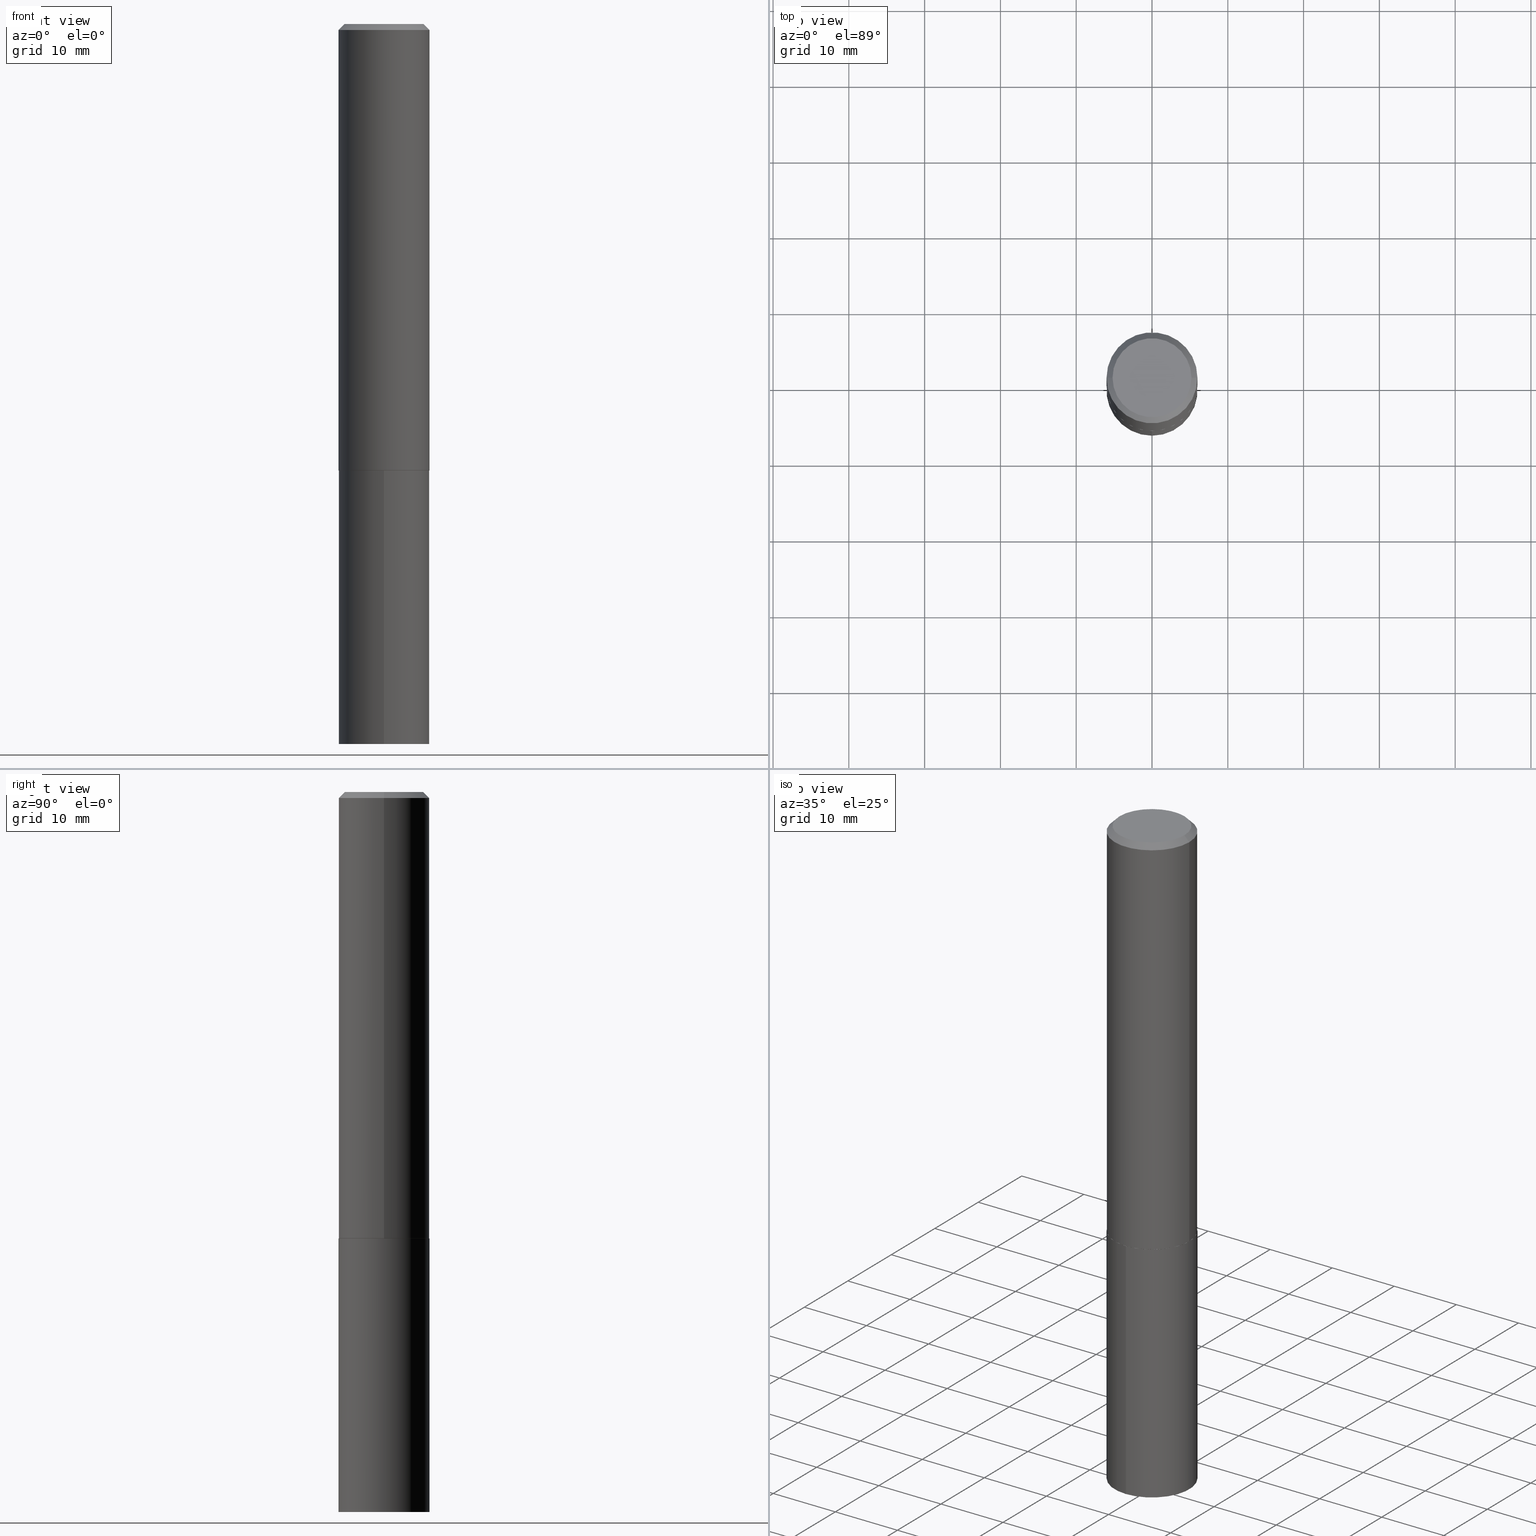
[diagram: canonical four-view strip — front | top / right | iso, engineering-drawing reading convention]
A machine part, canonical four-view strip (front | top / right | iso — engineering-drawing reading convention). The complete STEP part file that produces these views, byte-faithful:
ISO-10303-21;
HEADER;
FILE_DESCRIPTION (( 'STEP AP203' ),
    '1' );
FILE_NAME ('67797.STEP',
    '2024-04-23T12:53:49',
    ( '' ),
    ( '' ),
    'SwSTEP 2.0',
    'SolidWorks 2023',
    '' );
FILE_SCHEMA (( 'CONFIG_CONTROL_DESIGN' ));
ENDSEC;

DATA;
#1 = CARTESIAN_POINT ( 'NONE',  ( -0.2361999999999999933, 1.540266992630647030E-15, -0.03125000000000020817 ) ) ;
#2 = PERSON_AND_ORGANIZATION ( #175, #254 ) ;
#3 = ORIENTED_EDGE ( 'NONE', *, *, #55, .F. ) ;
#4 = CIRCLE ( 'NONE', #275, 0.2362000000000003264 ) ;
#5 = CARTESIAN_POINT ( 'NONE',  ( -1.649375784469439136E-15, -0.2362000000000080979, -2.319199999999999484 ) ) ;
#6 = DIRECTION ( 'NONE',  ( -1.000000000000000000, 6.982962677686266711E-15, 0.000000000000000000 ) ) ;
#7 = FACE_OUTER_BOUND ( 'NONE', #52, .T. ) ;
#8 = AXIS2_PLACEMENT_3D ( 'NONE', #300, #183, #201 ) ;
#9 = AXIS2_PLACEMENT_3D ( 'NONE', #102, #128, #181 ) ;
#10 = CARTESIAN_POINT ( 'NONE',  ( 5.671531255304567884E-29, -8.097443521045022431E-15, -2.319199999999999484 ) ) ;
#11 = PRODUCT_DEFINITION ( 'UNKNOWN', '', #91, #211 ) ;
#12 = CARTESIAN_POINT ( 'NONE',  ( -1.649375784469439136E-15, -0.2362000000000080979, -2.319199999999999484 ) ) ;
#13 = CARTESIAN_POINT ( 'NONE',  ( 7.642090019328602662E-31, -1.091087918388490267E-16, -0.03125000000000020817 ) ) ;
#14 = VERTEX_POINT ( 'NONE', #157 ) ;
#15 = ORIENTED_EDGE ( 'NONE', *, *, #283, .T. ) ;
#16 = CIRCLE ( 'NONE', #258, 0.2361999999999999933 ) ;
#17 = CC_DESIGN_PERSON_AND_ORGANIZATION_ASSIGNMENT ( #110, #252, ( #91 ) ) ;
#18 = CARTESIAN_POINT ( 'NONE',  ( -5.892338936576605744E-47, 8.412698369802303245E-33, 2.409492577322419881E-18 ) ) ;
#19 =( NAMED_UNIT ( * ) PLANE_ANGLE_UNIT ( ) SI_UNIT ( $, .RADIAN. ) );
#20 = VERTEX_POINT ( 'NONE', #24 ) ;
#21 = AXIS2_PLACEMENT_3D ( 'NONE', #22, #136, #44 ) ;
#22 = CARTESIAN_POINT ( 'NONE',  ( 5.670308520901476204E-29, -8.095697780375601716E-15, -2.318700000000000205 ) ) ;
#23 = CALENDAR_DATE ( 2024, 23, 4 ) ;
#24 = CARTESIAN_POINT ( 'NONE',  ( 1.678301941865430350E-15, 0.2361999999999869482, -3.740200000000000635 ) ) ;
#25 = SECURITY_CLASSIFICATION_LEVEL ( 'unclassified' ) ;
#26 = LINE ( 'NONE', #341, #164 ) ;
#27 = PERSON_AND_ORGANIZATION ( #175, #254 ) ;
#28 = DIRECTION ( 'NONE',  ( 1.000000000000000000, -6.982962677686266711E-15, 4.876118559169178830E-29 ) ) ;
#29 = AXIS2_PLACEMENT_3D ( 'NONE', #312, #208, #47 ) ;
#30 = LOCAL_TIME ( 8, 53, 49.00000000000000000, #80 ) ;
#31 = CARTESIAN_POINT ( 'NONE',  ( 1.518799234684188645E-28, -4.407138363064351052E-15, -3.740199999999999747 ) ) ;
#32 = CARTESIAN_POINT ( 'NONE',  ( 5.671531255304570126E-29, -8.097443521045024009E-15, -2.319200000000000372 ) ) ;
#33 = CC_DESIGN_PERSON_AND_ORGANIZATION_ASSIGNMENT ( #2, #308, ( #91 ) ) ;
#34 = DIRECTION ( 'NONE',  ( -6.982962677686265922E-15, -1.000000000000000000, 3.492965275758110023E-15 ) ) ;
#35 = CC_DESIGN_APPROVAL ( #206, ( #58 ) ) ;
#36 = DIRECTION ( 'NONE',  ( -2.445468806185136877E-29, 3.491481338843145188E-15, 1.000000000000000000 ) ) ;
#37 = EDGE_LOOP ( 'NONE', ( #40, #15, #280, #336 ) ) ;
#38 = ADVANCED_FACE ( 'NONE', ( #362 ), #51, .T. ) ;
#39 = EDGE_LOOP ( 'NONE', ( #173, #125, #242, #137 ) ) ;
#40 = ORIENTED_EDGE ( 'NONE', *, *, #240, .F. ) ;
#41 = LENGTH_MEASURE_WITH_UNIT ( LENGTH_MEASURE( 0.02539999999999999897 ), #130 );
#42 = PRODUCT ( '67797', '67797', '', ( #328 ) ) ;
#43 = DIRECTION ( 'NONE',  ( 0.7071067811865452413, -7.319954787623248157E-15, -0.7071067811865497932 ) ) ;
#44 = DIRECTION ( 'NONE',  ( 1.000000000000000000, -6.982962677686270655E-15, 0.000000000000000000 ) ) ;
#45 = CARTESIAN_POINT ( 'NONE',  ( -0.2362000000000003264, -6.417395838510242955E-15, -2.318700000000000205 ) ) ;
#46 = ORIENTED_EDGE ( 'NONE', *, *, #349, .F. ) ;
#47 = DIRECTION ( 'NONE',  ( -6.982962677686265922E-15, -1.000000000000000000, 3.469747663417777397E-15 ) ) ;
#48 = DIRECTION ( 'NONE',  ( -2.445468806185136597E-29, 3.491481338843145583E-15, 1.000000000000000000 ) ) ;
#49 = CALENDAR_DATE ( 2024, 23, 4 ) ;
#50 = CIRCLE ( 'NONE', #323, 0.2357000000000002982 ) ;
#51 = CYLINDRICAL_SURFACE ( 'NONE', #329, 0.2361999999999999933 ) ;
#52 = EDGE_LOOP ( 'NONE', ( #46, #147 ) ) ;
#53 = UNCERTAINTY_MEASURE_WITH_UNIT (LENGTH_MEASURE( 1.000000000000000082E-05 ), #155, 'distance_accuracy_value', 'NONE');
#54 = CARTESIAN_POINT ( 'NONE',  ( -0.2357000000000002982, -6.420045065684352579E-15, -2.319199999999999484 ) ) ;
#55 = EDGE_CURVE ( 'NONE', #265, #245, #50, .T. ) ;
#56 = CARTESIAN_POINT ( 'NONE',  ( 0.2362000000000001598, -1.649375784469497314E-15, 1.151752954443000929E-29 ) ) ;
#57 = CIRCLE ( 'NONE', #319, 0.2357000000000002982 ) ;
#58 = SECURITY_CLASSIFICATION ( '', '', #25 ) ;
#59 = CARTESIAN_POINT ( 'NONE',  ( 5.671531255304570126E-29, -8.097443521045024009E-15, -2.319200000000000372 ) ) ;
#60 = DIRECTION ( 'NONE',  ( 1.000000000000000000, -6.982962677686265922E-15, 0.000000000000000000 ) ) ;
#61 = CARTESIAN_POINT ( 'NONE',  ( 5.670308520901476204E-29, -8.095697780375601716E-15, -2.318700000000000205 ) ) ;
#62 = AXIS2_PLACEMENT_3D ( 'NONE', #31, #191, #34 ) ;
#63 = CALENDAR_DATE ( 2024, 23, 4 ) ;
#64 = AXIS2_PLACEMENT_3D ( 'NONE', #196, #87, #28 ) ;
#65 = VECTOR ( 'NONE', #43, 39.37007874015748143 ) ;
#66 = ORIENTED_EDGE ( 'NONE', *, *, #234, .T. ) ;
#67 = EDGE_CURVE ( 'NONE', #20, #179, #161, .T. ) ;
#68 = CARTESIAN_POINT ( 'NONE',  ( 0.2361999999999999933, -1.729558418912484771E-15, -0.03125000000000020817 ) ) ;
#69 = ADVANCED_FACE ( 'NONE', ( #214 ), #90, .T. ) ;
#70 = EDGE_LOOP ( 'NONE', ( #131, #251, #268, #235 ) ) ;
#71 = EDGE_CURVE ( 'NONE', #149, #325, #359, .T. ) ;
#72 = EDGE_CURVE ( 'NONE', #353, #325, #79, .T. ) ;
#73 = COORDINATED_UNIVERSAL_TIME_OFFSET ( 5, 0, .BEHIND. ) ;
#74 = EDGE_LOOP ( 'NONE', ( #296, #123 ) ) ;
#75 = DIRECTION ( 'NONE',  ( -2.444432578575813081E-29, 3.492965275758109629E-15, 1.000000000000000000 ) ) ;
#76 = CIRCLE ( 'NONE', #267, 0.2361999999999999933 ) ;
#77 = LINE ( 'NONE', #12, #94 ) ;
#78 = CARTESIAN_POINT ( 'NONE',  ( -0.2362000000000003264, -6.417395838510242955E-15, -2.318700000000000205 ) ) ;
#79 = LINE ( 'NONE', #299, #306 ) ;
#80 = COORDINATED_UNIVERSAL_TIME_OFFSET ( 5, 0, .BEHIND. ) ;
#81 = EDGE_CURVE ( 'NONE', #14, #353, #4, .T. ) ;
#82 = CARTESIAN_POINT ( 'NONE',  ( 5.671531255304567884E-29, -8.097443521045022431E-15, -2.319199999999999484 ) ) ;
#83 = AXIS2_PLACEMENT_3D ( 'NONE', #61, #140, #286 ) ;
#84 = PLANE ( 'NONE',  #126 ) ;
#85 = DATE_AND_TIME ( #49, #213 ) ;
#86 = DIRECTION ( 'NONE',  ( 0.7071067811868372299, -2.468850131085291414E-15, 0.7071067811862578045 ) ) ;
#87 = DIRECTION ( 'NONE',  ( -2.445468806185136597E-29, 3.491481338843145583E-15, 1.000000000000000000 ) ) ;
#88 = CARTESIAN_POINT ( 'NONE',  ( 0.000000000000000000, 0.000000000000000000, 0.000000000000000000 ) ) ;
#89 = DIMENSIONAL_EXPONENTS ( 1.000000000000000000, 0.000000000000000000, 0.000000000000000000, 0.000000000000000000, 0.000000000000000000, 0.000000000000000000, 0.000000000000000000 ) ;
#90 = CONICAL_SURFACE ( 'NONE', #21, 0.2362000000000003264, 0.7853981633978580623 ) ;
#91 = PRODUCT_DEFINITION_FORMATION_WITH_SPECIFIED_SOURCE ( 'ANY', '', #42, .NOT_KNOWN. ) ;
#92 = LINE ( 'NONE', #56, #351 ) ;
#93 = DIRECTION ( 'NONE',  ( -2.445468806185136597E-29, 3.491481338843145583E-15, 1.000000000000000000 ) ) ;
#94 = VECTOR ( 'NONE', #139, 39.37007874015748143 ) ;
#95 = ADVANCED_FACE ( 'NONE', ( #134 ), #84, .F. ) ;
#96 = EDGE_LOOP ( 'NONE', ( #159, #327, #266, #358 ) ) ;
#97 = MANIFOLD_SOLID_BREP ( 'Body-Move/Copy2[1]', #169 ) ;
#98 = ORIENTED_EDGE ( 'NONE', *, *, #282, .F. ) ;
#99 = ORIENTED_EDGE ( 'NONE', *, *, #282, .T. ) ;
#100 = AXIS2_PLACEMENT_3D ( 'NONE', #32, #141, #285 ) ;
#101 = PERSON_AND_ORGANIZATION ( #175, #254 ) ;
#102 = CARTESIAN_POINT ( 'NONE',  ( 0.000000000000000000, 0.000000000000000000, 0.000000000000000000 ) ) ;
#103 = DIRECTION ( 'NONE',  ( 2.438088387897960049E-29, -3.491481338843145188E-15, -1.000000000000000000 ) ) ;
#104 = CARTESIAN_POINT ( 'NONE',  ( -0.2361999999999999933, -2.424101344241866648E-15, -0.03125000000000020817 ) ) ;
#105 = EDGE_CURVE ( 'NONE', #245, #14, #26, .T. ) ;
#106 = DIRECTION ( 'NONE',  ( 1.000000000000000000, -6.982962677686265922E-15, 0.000000000000000000 ) ) ;
#107 = DIRECTION ( 'NONE',  ( 6.982962677686265922E-15, 1.000000000000000000, -3.492965275758110023E-15 ) ) ;
#108 = COORDINATED_UNIVERSAL_TIME_OFFSET ( 5, 0, .BEHIND. ) ;
#109 = CARTESIAN_POINT ( 'NONE',  ( 5.670308520901476204E-29, -8.095697780375601716E-15, -2.318700000000000205 ) ) ;
#110 = PERSON_AND_ORGANIZATION ( #175, #254 ) ;
#111 = CIRCLE ( 'NONE', #356, 0.2361999999999999933 ) ;
#112 = CARTESIAN_POINT ( 'NONE',  ( 5.671531255304570126E-29, -8.097443521045024009E-15, -2.319200000000000372 ) ) ;
#113 = ADVANCED_FACE ( 'NONE', ( #270 ), #216, .F. ) ;
#114 = DIRECTION ( 'NONE',  ( -2.445468806185136597E-29, 3.491481338843145583E-15, 1.000000000000000000 ) ) ;
#115 = CYLINDRICAL_SURFACE ( 'NONE', #226, 0.2362000000000001598 ) ;
#116 = DIRECTION ( 'NONE',  ( -2.445468806185136597E-29, 3.491481338843145583E-15, 1.000000000000000000 ) ) ;
#117 = CONICAL_SURFACE ( 'NONE', #220, 0.2361999999999999933, 0.7853981633974450594 ) ;
#118 = APPROVAL_PERSON_ORGANIZATION ( #249, #206, #363 ) ;
#119 = FACE_OUTER_BOUND ( 'NONE', #238, .T. ) ;
#120 = DIRECTION ( 'NONE',  ( -2.444432578575813081E-29, 3.492965275758109629E-15, 1.000000000000000000 ) ) ;
#121 = DIRECTION ( 'NONE',  ( -1.000000000000000000, 6.982962677686266711E-15, 0.000000000000000000 ) ) ;
#122 = EDGE_CURVE ( 'NONE', #205, #177, #77, .T. ) ;
#123 = ORIENTED_EDGE ( 'NONE', *, *, #240, .T. ) ;
#124 = CC_DESIGN_SECURITY_CLASSIFICATION ( #58, ( #91 ) ) ;
#125 = ORIENTED_EDGE ( 'NONE', *, *, #72, .T. ) ;
#126 = AXIS2_PLACEMENT_3D ( 'NONE', #248, #365, #107 ) ;
#127 = CC_DESIGN_APPROVAL ( #193, ( #91 ) ) ;
#128 = DIRECTION ( 'NONE',  ( 0.000000000000000000, 0.000000000000000000, 1.000000000000000000 ) ) ;
#129 = ORIENTED_EDGE ( 'NONE', *, *, #81, .F. ) ;
#130 =( LENGTH_UNIT ( ) NAMED_UNIT ( * ) SI_UNIT ( $, .METRE. ) );
#131 = ORIENTED_EDGE ( 'NONE', *, *, #72, .F. ) ;
#132 = ORIENTED_EDGE ( 'NONE', *, *, #142, .T. ) ;
#133 = DIRECTION ( 'NONE',  ( -0.7071067811868372299, 7.493145998871401767E-15, 0.7071067811862578045 ) ) ;
#134 = FACE_OUTER_BOUND ( 'NONE', #302, .T. ) ;
#135 = CALENDAR_DATE ( 2024, 23, 4 ) ;
#136 = DIRECTION ( 'NONE',  ( -2.445468806185136597E-29, 3.491481338843145583E-15, 1.000000000000000000 ) ) ;
#137 = ORIENTED_EDGE ( 'NONE', *, *, #166, .F. ) ;
#138 = APPROVAL_STATUS ( 'not_yet_approved' ) ;
#139 = DIRECTION ( 'NONE',  ( -2.444432578575813362E-29, 3.492965275758110023E-15, 1.000000000000000000 ) ) ;
#140 = DIRECTION ( 'NONE',  ( -2.445468806185136597E-29, 3.491481338843145583E-15, 1.000000000000000000 ) ) ;
#141 = DIRECTION ( 'NONE',  ( -2.444432578575813081E-29, 3.492965275758109629E-15, 1.000000000000000000 ) ) ;
#142 = EDGE_CURVE ( 'NONE', #179, #177, #16, .T. ) ;
#143 = FACE_OUTER_BOUND ( 'NONE', #357, .T. ) ;
#144 = CIRCLE ( 'NONE', #83, 0.2362000000000003264 ) ;
#145 = DIRECTION ( 'NONE',  ( 1.000000000000000000, -6.982962677686266711E-15, 4.876176775795936353E-29 ) ) ;
#146 = EDGE_CURVE ( 'NONE', #353, #14, #144, .T. ) ;
#147 = ORIENTED_EDGE ( 'NONE', *, *, #224, .F. ) ;
#148 = ADVANCED_BREP_SHAPE_REPRESENTATION ( '67797', ( #97, #209, #9 ), #339 ) ;
#149 = VERTEX_POINT ( 'NONE', #315 ) ;
#150 = AXIS2_PLACEMENT_3D ( 'NONE', #231, #93, #167 ) ;
#151 = ORIENTED_EDGE ( 'NONE', *, *, #224, .T. ) ;
#152 = DIRECTION ( 'NONE',  ( 2.445468806185136597E-29, -3.491481338843145583E-15, -1.000000000000000000 ) ) ;
#153 = APPROVAL ( #360, 'UNSPECIFIED' ) ;
#154 = DIRECTION ( 'NONE',  ( -2.444432578575813362E-29, 3.492965275758110023E-15, 1.000000000000000000 ) ) ;
#155 =( CONVERSION_BASED_UNIT ( 'INCH', #41 ) LENGTH_UNIT ( ) NAMED_UNIT ( #89 ) );
#156 = EDGE_CURVE ( 'NONE', #149, #271, #298, .T. ) ;
#157 = CARTESIAN_POINT ( 'NONE',  ( 0.2362000000000003264, -9.745073564845101397E-15, -2.318700000000000205 ) ) ;
#158 = CARTESIAN_POINT ( 'NONE',  ( 9.145069949460798922E-29, -1.306094717789729587E-14, -3.740199999999999747 ) ) ;
#159 = ORIENTED_EDGE ( 'NONE', *, *, #283, .F. ) ;
#160 = SHAPE_DEFINITION_REPRESENTATION ( #355, #148 ) ;
#161 = LINE ( 'NONE', #221, #212 ) ;
#162 = ORIENTED_EDGE ( 'NONE', *, *, #142, .F. ) ;
#163 = FACE_OUTER_BOUND ( 'NONE', #39, .T. ) ;
#164 = VECTOR ( 'NONE', #86, 39.37007874015748143 ) ;
#165 = DIRECTION ( 'NONE',  ( 2.445468806185136597E-29, -3.491481338843145583E-15, -1.000000000000000000 ) ) ;
#166 = EDGE_CURVE ( 'NONE', #14, #277, #92, .T. ) ;
#167 = DIRECTION ( 'NONE',  ( 1.000000000000000000, -6.982962677686266711E-15, 4.876118559169178830E-29 ) ) ;
#168 = CYLINDRICAL_SURFACE ( 'NONE', #174, 0.2362000000000001598 ) ;
#169 = CLOSED_SHELL ( 'NONE', ( #38, #223, #171, #95 ) ) ;
#170 = CYLINDRICAL_SURFACE ( 'NONE', #100, 0.2361999999999999933 ) ;
#171 = ADVANCED_FACE ( 'NONE', ( #143 ), #170, .T. ) ;
#172 = DATE_AND_TIME ( #63, #227 ) ;
#173 = ORIENTED_EDGE ( 'NONE', *, *, #81, .T. ) ;
#174 = AXIS2_PLACEMENT_3D ( 'NONE', #260, #116, #145 ) ;
#175 = PERSON ( 'UNSPECIFIED', 'UNSPECIFIED', 'UNSPECIFIED', ('UNSPECIFIED'), ('UNSPECIFIED'), ('UNSPECIFIED') ) ;
#176 = DIRECTION ( 'NONE',  ( -2.445468806185136597E-29, 3.491481338843145583E-15, 1.000000000000000000 ) ) ;
#177 = VERTEX_POINT ( 'NONE', #5 ) ;
#178 = CARTESIAN_POINT ( 'NONE',  ( 7.642090019328602662E-31, -1.091087918388490267E-16, -0.03125000000000020817 ) ) ;
#179 = VERTEX_POINT ( 'NONE', #197 ) ;
#180 = CIRCLE ( 'NONE', #64, 0.2049499999999999933 ) ;
#181 = DIRECTION ( 'NONE',  ( 1.000000000000000000, 0.000000000000000000, 0.000000000000000000 ) ) ;
#182 = ORIENTED_EDGE ( 'NONE', *, *, #332, .T. ) ;
#183 = DIRECTION ( 'NONE',  ( -2.445468806185136597E-29, 3.491481338843145583E-15, 1.000000000000000000 ) ) ;
#184 = ORIENTED_EDGE ( 'NONE', *, *, #105, .T. ) ;
#185 = DATE_TIME_ROLE ( 'classification_date' ) ;
#186 = ORIENTED_EDGE ( 'NONE', *, *, #67, .F. ) ;
#187 = APPROVAL_STATUS ( 'not_yet_approved' ) ;
#188 = VECTOR ( 'NONE', #133, 39.37007874015748143 ) ;
#189 = ORIENTED_EDGE ( 'NONE', *, *, #67, .T. ) ;
#190 = DATE_AND_TIME ( #135, #263 ) ;
#191 = DIRECTION ( 'NONE',  ( -2.444432578575812521E-29, 3.492965275758110023E-15, 1.000000000000000000 ) ) ;
#192 = ADVANCED_FACE ( 'NONE', ( #255 ), #288, .T. ) ;
#193 = APPROVAL ( #187, 'UNSPECIFIED' ) ;
#194 = CARTESIAN_POINT ( 'NONE',  ( 0.2361999999999999933, -1.758484576308345231E-15, -0.03125000000000020817 ) ) ;
#195 = CC_DESIGN_APPROVAL ( #153, ( #11 ) ) ;
#196 = CARTESIAN_POINT ( 'NONE',  ( -1.178467787315321149E-46, 1.682539673960460649E-32, 4.818985154644839761E-18 ) ) ;
#197 = CARTESIAN_POINT ( 'NONE',  ( 1.678301941865448296E-15, 0.2361999999999919442, -2.319200000000001261 ) ) ;
#198 = CARTESIAN_POINT ( 'NONE',  ( 7.642090019328602662E-31, -1.091087918388490267E-16, -0.03125000000000020817 ) ) ;
#199 = APPROVAL_ROLE ( '' ) ;
#200 = AXIS2_PLACEMENT_3D ( 'NONE', #18, #103, #210 ) ;
#201 = DIRECTION ( 'NONE',  ( 1.000000000000000000, -6.982962677686270655E-15, 0.000000000000000000 ) ) ;
#202 = ORIENTED_EDGE ( 'NONE', *, *, #55, .T. ) ;
#203 = ADVANCED_FACE ( 'NONE', ( #163 ), #115, .T. ) ;
#204 = AXIS2_PLACEMENT_3D ( 'NONE', #198, #318, #311 ) ;
#205 = VERTEX_POINT ( 'NONE', #257 ) ;
#206 = APPROVAL ( #138, 'UNSPECIFIED' ) ;
#207 = PERSON_AND_ORGANIZATION_ROLE ( 'creator' ) ;
#208 = DIRECTION ( 'NONE',  ( -2.444432578575813081E-29, 3.492965275758109629E-15, 1.000000000000000000 ) ) ;
#209 = MANIFOLD_SOLID_BREP ( 'Body-Move/Copy2[2]', #344 ) ;
#210 = DIRECTION ( 'NONE',  ( -1.000000000000000000, 6.982962677686265922E-15, -4.876176775795935793E-29 ) ) ;
#211 = DESIGN_CONTEXT ( 'detailed design', #316, 'design' ) ;
#212 = VECTOR ( 'NONE', #154, 39.37007874015748143 ) ;
#213 = LOCAL_TIME ( 8, 53, 49.00000000000000000, #108 ) ;
#214 = FACE_OUTER_BOUND ( 'NONE', #354, .T. ) ;
#215 = DATE_AND_TIME ( #340, #30 ) ;
#216 = PLANE ( 'NONE',  #200 ) ;
#217 = PERSON_AND_ORGANIZATION ( #175, #254 ) ;
#218 = DIRECTION ( 'NONE',  ( 1.000000000000000000, -6.982962677686270655E-15, 0.000000000000000000 ) ) ;
#219 = PERSON_AND_ORGANIZATION_ROLE ( 'classification_officer' ) ;
#220 = AXIS2_PLACEMENT_3D ( 'NONE', #178, #152, #121 ) ;
#221 = CARTESIAN_POINT ( 'NONE',  ( 1.678301941865413192E-15, 0.2361999999999919164, -2.319200000000001261 ) ) ;
#222 = DIRECTION ( 'NONE',  ( 1.000000000000000000, -6.982962677686265922E-15, 4.876176775795935793E-29 ) ) ;
#223 = ADVANCED_FACE ( 'NONE', ( #7 ), #259, .F. ) ;
#224 = EDGE_CURVE ( 'NONE', #20, #205, #111, .T. ) ;
#225 = DIRECTION ( 'NONE',  ( -2.444432578575813081E-29, 3.492965275758109629E-15, 1.000000000000000000 ) ) ;
#226 = AXIS2_PLACEMENT_3D ( 'NONE', #88, #114, #348 ) ;
#227 = LOCAL_TIME ( 8, 53, 49.00000000000000000, #320 ) ;
#228 = CARTESIAN_POINT ( 'NONE',  ( 0.2357000000000002982, -9.743327824175677527E-15, -2.319199999999999484 ) ) ;
#229 = CC_DESIGN_PERSON_AND_ORGANIZATION_ASSIGNMENT ( #244, #261, ( #42 ) ) ;
#230 = PLANE ( 'NONE',  #313 ) ;
#231 = CARTESIAN_POINT ( 'NONE',  ( -1.178467787315321149E-46, 1.682539673960460649E-32, 4.818985154644839761E-18 ) ) ;
#232 = APPLICATION_PROTOCOL_DEFINITION ( 'international standard', 'config_control_design', 1994, #331 ) ;
#233 = ORIENTED_EDGE ( 'NONE', *, *, #349, .T. ) ;
#234 = EDGE_CURVE ( 'NONE', #245, #265, #57, .T. ) ;
#235 = ORIENTED_EDGE ( 'NONE', *, *, #301, .F. ) ;
#236 = CC_DESIGN_DATE_AND_TIME_ASSIGNMENT ( #85, #185, ( #58 ) ) ;
#237 = CIRCLE ( 'NONE', #204, 0.2361999999999999933 ) ;
#238 = EDGE_LOOP ( 'NONE', ( #330, #3 ) ) ;
#239 = APPLICATION_PROTOCOL_DEFINITION ( 'international standard', 'config_control_design', 1994, #316 ) ;
#240 = EDGE_CURVE ( 'NONE', #271, #149, #180, .T. ) ;
#241 = ADVANCED_FACE ( 'NONE', ( #289 ), #168, .T. ) ;
#242 = ORIENTED_EDGE ( 'NONE', *, *, #264, .F. ) ;
#243 = ORIENTED_EDGE ( 'NONE', *, *, #146, .F. ) ;
#244 = PERSON_AND_ORGANIZATION ( #175, #254 ) ;
#245 = VERTEX_POINT ( 'NONE', #228 ) ;
#246 = CONICAL_SURFACE ( 'NONE', #8, 0.2362000000000003264, 0.7853981633978580623 ) ;
#247 = APPROVAL_PERSON_ORGANIZATION ( #101, #153, #199 ) ;
#248 = CARTESIAN_POINT ( 'NONE',  ( 5.671531255304570126E-29, -8.097443521045024009E-15, -2.319200000000000372 ) ) ;
#249 = PERSON_AND_ORGANIZATION ( #175, #254 ) ;
#250 = DIRECTION ( 'NONE',  ( -2.444432578575813081E-29, 3.492965275758109629E-15, 1.000000000000000000 ) ) ;
#251 = ORIENTED_EDGE ( 'NONE', *, *, #146, .T. ) ;
#252 = PERSON_AND_ORGANIZATION_ROLE ( 'design_supplier' ) ;
#253 = VECTOR ( 'NONE', #334, 39.37007874015748143 ) ;
#254 = ORGANIZATION ( 'UNSPECIFIED', 'UNSPECIFIED', '' ) ;
#255 = FACE_OUTER_BOUND ( 'NONE', #37, .T. ) ;
#256 = DIRECTION ( 'NONE',  ( -6.982962677686265922E-15, -1.000000000000000000, 3.469747663417777397E-15 ) ) ;
#257 = CARTESIAN_POINT ( 'NONE',  ( -1.649375784469404426E-15, -0.2362000000000130384, -3.740199999999998415 ) ) ;
#258 = AXIS2_PLACEMENT_3D ( 'NONE', #59, #120, #256 ) ;
#259 = PLANE ( 'NONE',  #62 ) ;
#260 = CARTESIAN_POINT ( 'NONE',  ( 0.000000000000000000, 0.000000000000000000, 0.000000000000000000 ) ) ;
#261 = PERSON_AND_ORGANIZATION_ROLE ( 'design_owner' ) ;
#262 = ADVANCED_FACE ( 'NONE', ( #119 ), #230, .F. ) ;
#263 = LOCAL_TIME ( 8, 53, 49.00000000000000000, #366 ) ;
#264 = EDGE_CURVE ( 'NONE', #277, #325, #237, .T. ) ;
#265 = VERTEX_POINT ( 'NONE', #54 ) ;
#266 = ORIENTED_EDGE ( 'NONE', *, *, #71, .T. ) ;
#267 = AXIS2_PLACEMENT_3D ( 'NONE', #158, #75, #272 ) ;
#268 = ORIENTED_EDGE ( 'NONE', *, *, #166, .T. ) ;
#269 =( NAMED_UNIT ( * ) SI_UNIT ( $, .STERADIAN. ) SOLID_ANGLE_UNIT ( ) );
#270 = FACE_OUTER_BOUND ( 'NONE', #74, .T. ) ;
#271 = VERTEX_POINT ( 'NONE', #342 ) ;
#272 = DIRECTION ( 'NONE',  ( -6.982962677686265922E-15, -1.000000000000000000, 4.626330217890369336E-15 ) ) ;
#273 = DIRECTION ( 'NONE',  ( -2.445468806185136597E-29, 3.491481338843145583E-15, 1.000000000000000000 ) ) ;
#274 = AXIS2_PLACEMENT_3D ( 'NONE', #13, #176, #333 ) ;
#275 = AXIS2_PLACEMENT_3D ( 'NONE', #109, #48, #218 ) ;
#276 = APPROVAL_DATE_TIME ( #190, #206 ) ;
#277 = VERTEX_POINT ( 'NONE', #194 ) ;
#278 = DATE_AND_TIME ( #23, #292 ) ;
#279 = PRODUCT_RELATED_PRODUCT_CATEGORY ( 'detail', '', ( #42 ) ) ;
#280 = ORIENTED_EDGE ( 'NONE', *, *, #264, .T. ) ;
#281 = APPROVAL_ROLE ( '' ) ;
#282 = EDGE_CURVE ( 'NONE', #177, #179, #291, .T. ) ;
#283 = EDGE_CURVE ( 'NONE', #271, #277, #321, .T. ) ;
#284 = DIRECTION ( 'NONE',  ( -2.438088387897960049E-29, 3.491481338843145188E-15, 1.000000000000000000 ) ) ;
#285 = DIRECTION ( 'NONE',  ( -6.982962677686265922E-15, -1.000000000000000000, 3.469747663417777397E-15 ) ) ;
#286 = DIRECTION ( 'NONE',  ( 1.000000000000000000, -6.982962677686270655E-15, 0.000000000000000000 ) ) ;
#287 = CARTESIAN_POINT ( 'NONE',  ( 7.642090019328602662E-31, -1.091087918388490267E-16, -0.03125000000000020817 ) ) ;
#288 = CONICAL_SURFACE ( 'NONE', #338, 0.2361999999999999933, 0.7853981633974450594 ) ;
#289 = FACE_OUTER_BOUND ( 'NONE', #70, .T. ) ;
#290 = APPROVAL_DATE_TIME ( #172, #153 ) ;
#291 = CIRCLE ( 'NONE', #29, 0.2361999999999999933 ) ;
#292 = LOCAL_TIME ( 8, 53, 49.00000000000000000, #73 ) ;
#293 = EDGE_LOOP ( 'NONE', ( #322, #202, #184, #243 ) ) ;
#294 = ORIENTED_EDGE ( 'NONE', *, *, #105, .F. ) ;
#295 = LINE ( 'NONE', #45, #188 ) ;
#296 = ORIENTED_EDGE ( 'NONE', *, *, #156, .T. ) ;
#297 = PERSON_AND_ORGANIZATION ( #175, #254 ) ;
#298 = CIRCLE ( 'NONE', #150, 0.2049499999999999933 ) ;
#299 = CARTESIAN_POINT ( 'NONE',  ( -0.2362000000000001598, 1.678301941865357775E-15, -1.161852468318209598E-29 ) ) ;
#300 = CARTESIAN_POINT ( 'NONE',  ( 5.670308520901476204E-29, -8.095697780375601716E-15, -2.318700000000000205 ) ) ;
#301 = EDGE_CURVE ( 'NONE', #325, #277, #361, .T. ) ;
#302 = EDGE_LOOP ( 'NONE', ( #99, #132 ) ) ;
#303 = DIRECTION ( 'NONE',  ( -2.445468806185136877E-29, 3.491481338843145188E-15, 1.000000000000000000 ) ) ;
#304 = APPROVAL_DATE_TIME ( #215, #193 ) ;
#305 = EDGE_LOOP ( 'NONE', ( #233, #189, #98, #309 ) ) ;
#306 = VECTOR ( 'NONE', #303, 39.37007874015748143 ) ;
#307 = CC_DESIGN_PERSON_AND_ORGANIZATION_ASSIGNMENT ( #217, #219, ( #58 ) ) ;
#308 = PERSON_AND_ORGANIZATION_ROLE ( 'creator' ) ;
#309 = ORIENTED_EDGE ( 'NONE', *, *, #122, .F. ) ;
#310 = ADVANCED_FACE ( 'NONE', ( #352 ), #117, .T. ) ;
#311 = DIRECTION ( 'NONE',  ( 1.000000000000000000, -6.982962677686266711E-15, 0.000000000000000000 ) ) ;
#312 = CARTESIAN_POINT ( 'NONE',  ( 5.671531255304570126E-29, -8.097443521045024009E-15, -2.319200000000000372 ) ) ;
#313 = AXIS2_PLACEMENT_3D ( 'NONE', #346, #284, #222 ) ;
#314 = APPROVAL_PERSON_ORGANIZATION ( #27, #193, #281 ) ;
#315 = CARTESIAN_POINT ( 'NONE',  ( -0.2049499999999999933, 1.485712596711223663E-15, 4.818985154634640807E-18 ) ) ;
#316 = APPLICATION_CONTEXT ( 'configuration controlled 3d designs of mechanical parts and assemblies' ) ;
#317 = CARTESIAN_POINT ( 'NONE',  ( 9.145069949460798922E-29, -1.306094717789729587E-14, -3.740199999999999747 ) ) ;
#318 = DIRECTION ( 'NONE',  ( -2.445468806185136597E-29, 3.491481338843145583E-15, 1.000000000000000000 ) ) ;
#319 = AXIS2_PLACEMENT_3D ( 'NONE', #10, #343, #60 ) ;
#320 = COORDINATED_UNIVERSAL_TIME_OFFSET ( 5, 0, .BEHIND. ) ;
#321 = LINE ( 'NONE', #68, #65 ) ;
#322 = ORIENTED_EDGE ( 'NONE', *, *, #332, .F. ) ;
#323 = AXIS2_PLACEMENT_3D ( 'NONE', #82, #273, #106 ) ;
#324 = ORIENTED_EDGE ( 'NONE', *, *, #122, .T. ) ;
#325 = VERTEX_POINT ( 'NONE', #104 ) ;
#326 = FACE_OUTER_BOUND ( 'NONE', #293, .T. ) ;
#327 = ORIENTED_EDGE ( 'NONE', *, *, #156, .F. ) ;
#328 = MECHANICAL_CONTEXT ( 'NONE', #331, 'mechanical' ) ;
#329 = AXIS2_PLACEMENT_3D ( 'NONE', #112, #250, #337 ) ;
#330 = ORIENTED_EDGE ( 'NONE', *, *, #234, .F. ) ;
#331 = APPLICATION_CONTEXT ( 'configuration controlled 3d designs of mechanical parts and assemblies' ) ;
#332 = EDGE_CURVE ( 'NONE', #265, #353, #295, .T. ) ;
#333 = DIRECTION ( 'NONE',  ( 1.000000000000000000, -6.982962677686266711E-15, 0.000000000000000000 ) ) ;
#334 = DIRECTION ( 'NONE',  ( -0.7071067811865452413, 2.468850131082233000E-15, -0.7071067811865497932 ) ) ;
#335 = DATE_TIME_ROLE ( 'creation_date' ) ;
#336 = ORIENTED_EDGE ( 'NONE', *, *, #71, .F. ) ;
#337 = DIRECTION ( 'NONE',  ( -6.982962677686265922E-15, -1.000000000000000000, 3.469747663417777397E-15 ) ) ;
#338 = AXIS2_PLACEMENT_3D ( 'NONE', #287, #165, #6 ) ;
#339 =( GEOMETRIC_REPRESENTATION_CONTEXT ( 3 ) GLOBAL_UNCERTAINTY_ASSIGNED_CONTEXT ( ( #53 ) ) GLOBAL_UNIT_ASSIGNED_CONTEXT ( ( #155, #19, #269 ) ) REPRESENTATION_CONTEXT ( 'NONE', 'WORKASPACE' ) );
#340 = CALENDAR_DATE ( 2024, 23, 4 ) ;
#341 = CARTESIAN_POINT ( 'NONE',  ( 0.2362000000000003264, -9.745073564845101397E-15, -2.318700000000000205 ) ) ;
#342 = CARTESIAN_POINT ( 'NONE',  ( 0.2049499999999999933, -1.567808741777880040E-15, 4.818985154655325294E-18 ) ) ;
#343 = DIRECTION ( 'NONE',  ( -2.445468806185136597E-29, 3.491481338843145583E-15, 1.000000000000000000 ) ) ;
#344 = CLOSED_SHELL ( 'NONE', ( #192, #203, #69, #262, #350, #241, #310, #113 ) ) ;
#345 = DIRECTION ( 'NONE',  ( -6.982962677686265922E-15, -1.000000000000000000, 4.626330217890369336E-15 ) ) ;
#346 = CARTESIAN_POINT ( 'NONE',  ( 7.548577062413302424E-29, -5.409407090452680934E-15, -2.319199999999999928 ) ) ;
#347 = CC_DESIGN_PERSON_AND_ORGANIZATION_ASSIGNMENT ( #297, #207, ( #11 ) ) ;
#348 = DIRECTION ( 'NONE',  ( 1.000000000000000000, -6.982962677686266711E-15, 4.876176775795936353E-29 ) ) ;
#349 = EDGE_CURVE ( 'NONE', #205, #20, #76, .T. ) ;
#350 = ADVANCED_FACE ( 'NONE', ( #326 ), #246, .T. ) ;
#351 = VECTOR ( 'NONE', #36, 39.37007874015748143 ) ;
#352 = FACE_OUTER_BOUND ( 'NONE', #96, .T. ) ;
#353 = VERTEX_POINT ( 'NONE', #78 ) ;
#354 = EDGE_LOOP ( 'NONE', ( #66, #182, #129, #294 ) ) ;
#355 = PRODUCT_DEFINITION_SHAPE ( 'NONE', 'NONE',  #11 ) ;
#356 = AXIS2_PLACEMENT_3D ( 'NONE', #317, #225, #345 ) ;
#357 = EDGE_LOOP ( 'NONE', ( #186, #151, #324, #162 ) ) ;
#358 = ORIENTED_EDGE ( 'NONE', *, *, #301, .T. ) ;
#359 = LINE ( 'NONE', #1, #253 ) ;
#360 = APPROVAL_STATUS ( 'not_yet_approved' ) ;
#361 = CIRCLE ( 'NONE', #274, 0.2361999999999999933 ) ;
#362 = FACE_OUTER_BOUND ( 'NONE', #305, .T. ) ;
#363 = APPROVAL_ROLE ( '' ) ;
#364 = CC_DESIGN_DATE_AND_TIME_ASSIGNMENT ( #278, #335, ( #11 ) ) ;
#365 = DIRECTION ( 'NONE',  ( 2.444432578575812521E-29, -3.492965275758110023E-15, -1.000000000000000000 ) ) ;
#366 = COORDINATED_UNIVERSAL_TIME_OFFSET ( 5, 0, .BEHIND. ) ;
ENDSEC;
END-ISO-10303-21;
